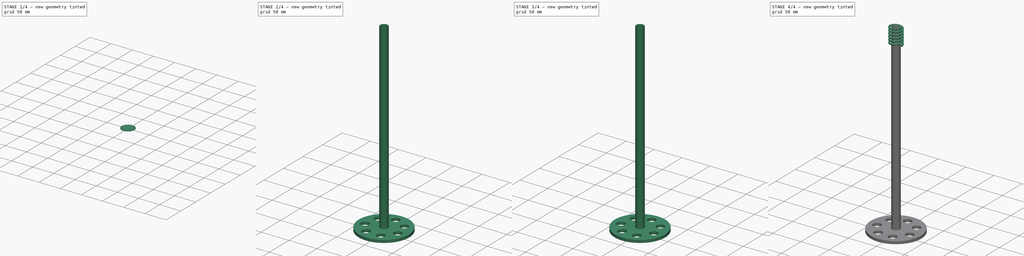
[diagram: build sequence overview — one tinted view per stage of 4, left to right]
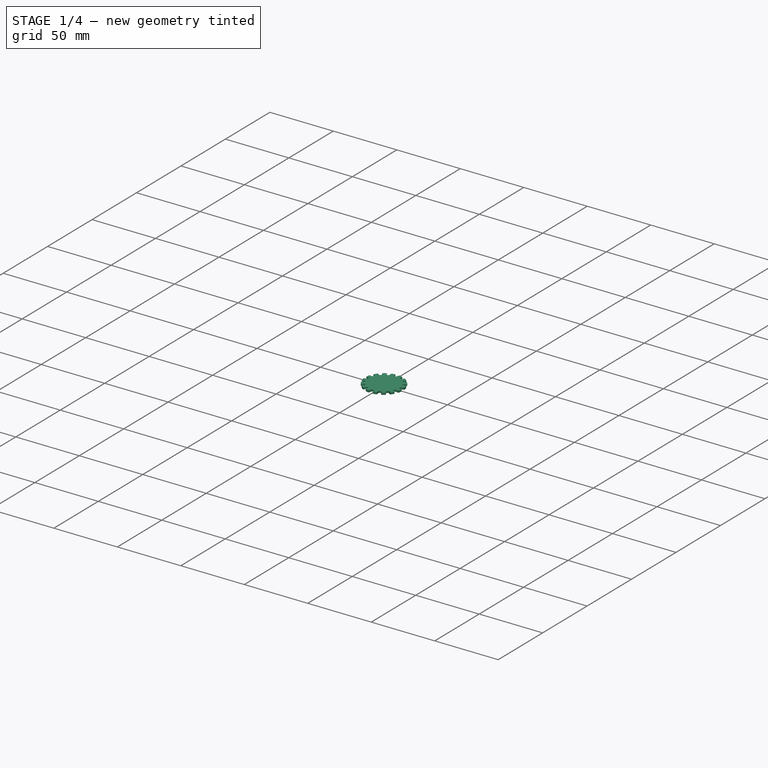
[diagram: stage 1 of 4 — iso view after this stage's code; geometry added in this stage tinted green]
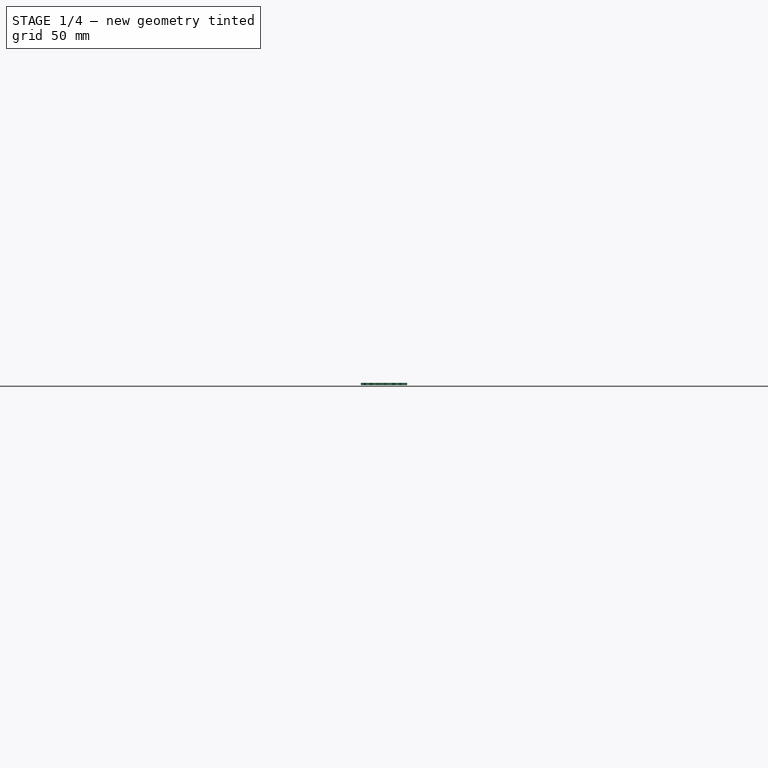
[diagram: stage 1 of 4 — front view after this stage's code; geometry added in this stage tinted green]
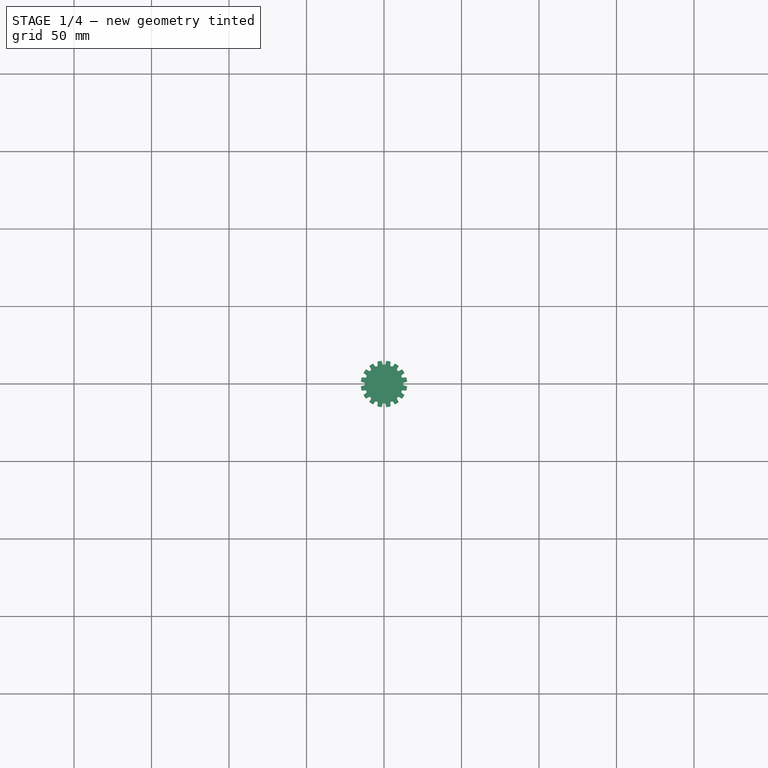
[diagram: stage 1 of 4 — top view after this stage's code; geometry added in this stage tinted green]
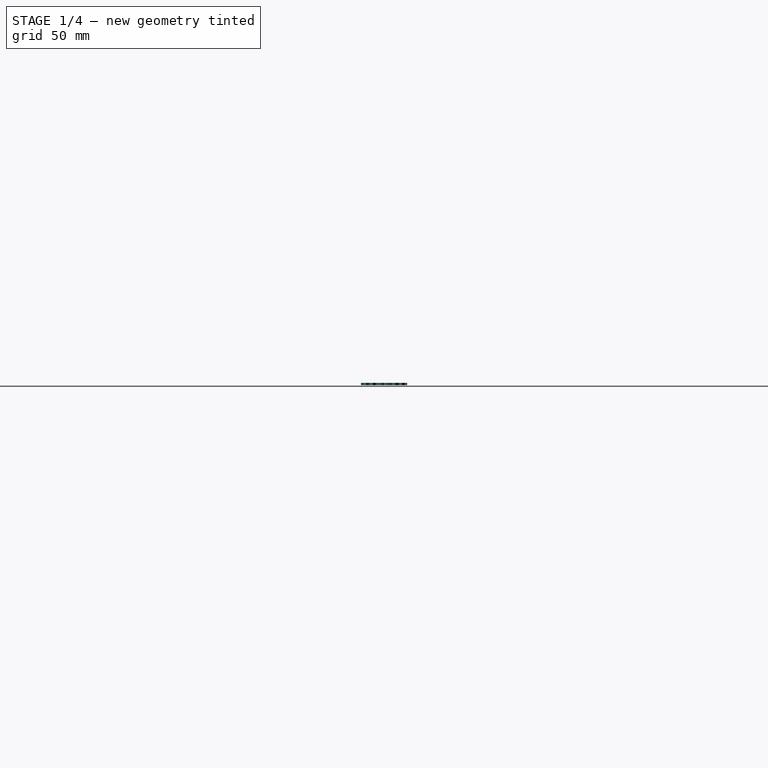
[diagram: stage 1 of 4 — right view after this stage's code; geometry added in this stage tinted green]
FCSTD DOCUMENT  (FreeCAD 0.17R13528 (Git))
Label: gprofil
License: All rights reserved
LicenseURL: http://en.wikipedia.org/wiki/All_rights_reserved
objects: Sketcher::SketchObject×12, PartDesign::Body×11, PartDesign::Pad×10, Part::Helix×1, Part::Sweep×1, PartDesign::FeatureBase×1, App::DocumentObjectGroup×1, PartDesign::Pocket×1, PartDesign::PolarPattern×1
note: 49 computed .brp shape members not serialized (recipe doc carries the construction recipe); baked Part::Feature solids carry a one-line shape summary decoded from their .brp

FEATURE [PartDesign::Body] Body010  label="äußerer kopf"
  Group = -> [Sketch011,Pad009]
  Origin = -> Origin010
  Placement = pos=(0,0,332) rot=(0,0,1;0rad)
  Tip = -> Pad009
FEATURE [Sketcher::SketchObject] Sketch012  label="Zahnrad_am_kopf001"
  MapMode = 5
  Support = -> [XY_Plane011]
  sketch-geometry (1):
    g0: Circle CenterX=0 CenterY=0 CenterZ=0 NormalX=0 NormalY=0 NormalZ=1 AngleXU=0 Radius=15
  constraints (2):
    c: Coincident(g0,g-1)
    c: Radius(g0) = 15
FEATURE [PartDesign::Pad] Pad010
  Length = 1.5
  Length2 = 100
  Profile = -> Sketch012
  Type = 0
FEATURE [Sketcher::SketchObject] Sketch013  label="Zahnrad_am_kopf002"
  MapMode = 5
  sketch-geometry (4):
    g0: LineSegment StartX=-2 StartY=17 StartZ=0 EndX=2 EndY=17 EndZ=0
    g1: LineSegment StartX=2 StartY=17 StartZ=0 EndX=0.968311 EndY=13 EndZ=0
    g2: ArcOfCircle CenterX=0 CenterY=13.2497 CenterZ=0 NormalX=0 NormalY=0 NormalZ=1 AngleXU=0 Radius=1 StartAngle=3.39401 EndAngle=6.03076
    g3: LineSegment StartX=-0.968311 StartY=13 StartZ=0 EndX=-2 EndY=17 EndZ=0
  constraints (11):
    c: Coincident(g0,g1)
    c: Tangent(g1,g2) = 1.5708
    c: Coincident(g2,g3)
    c: Coincident(g3,g0)
    c: DistanceX(g0,g0) = 4
    c: Radius(g2) = 1
    c: DistanceX(g-1,g2) = 0
    c: Symmetric(g0,g0,g-2)
    c: DistanceY(g-1,g2) = 13
    c: DistanceY(g-1,g0) = 17
    c: DistanceY(g-1,g1) = 13
FEATURE [PartDesign::Pocket] Pocket
  BaseFeature = -> Pad010
  Length = 5
  Length2 = 100
  Midplane = true
  Profile = -> Sketch013
  Type = 1
FEATURE [PartDesign::PolarPattern] PolarPattern
  Angle = 360
  Axis = -> Sketch013 [N_Axis]
  BaseFeature = -> Pocket
  Occurrences = 16
  Originals = -> [Pocket]
FEATURE [PartDesign::Body] Body011  label="Zahnrad_am_kopf"
  Group = -> [Sketch012,Pad010,Sketch013,Pocket,PolarPattern]
  Origin = -> Origin011
  Placement = pos=(0,0,338) rot=(0,0,1;0rad)
  Tip = -> PolarPattern
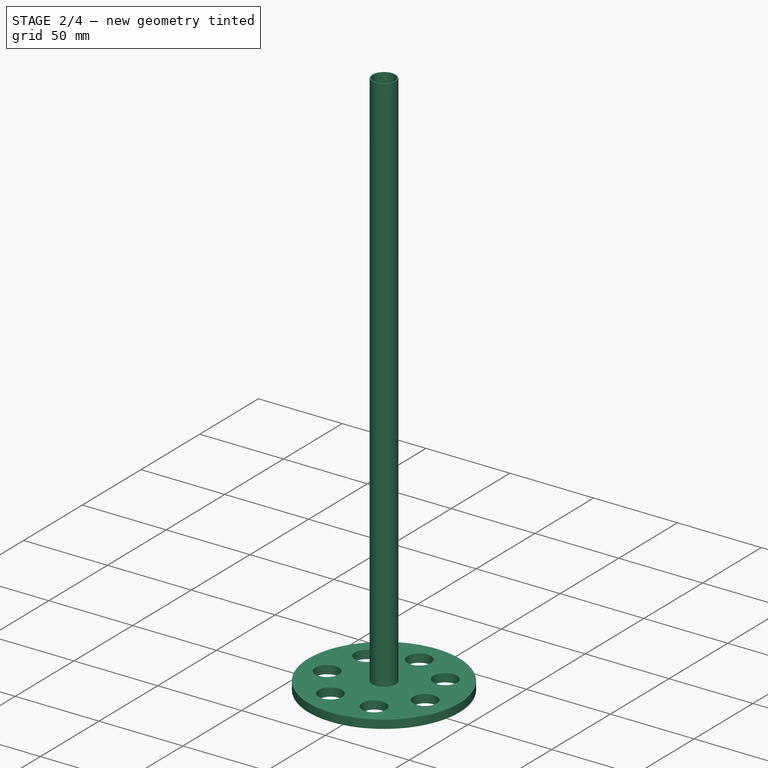
[diagram: stage 2 of 4 — iso view after this stage's code; geometry added in this stage tinted green]
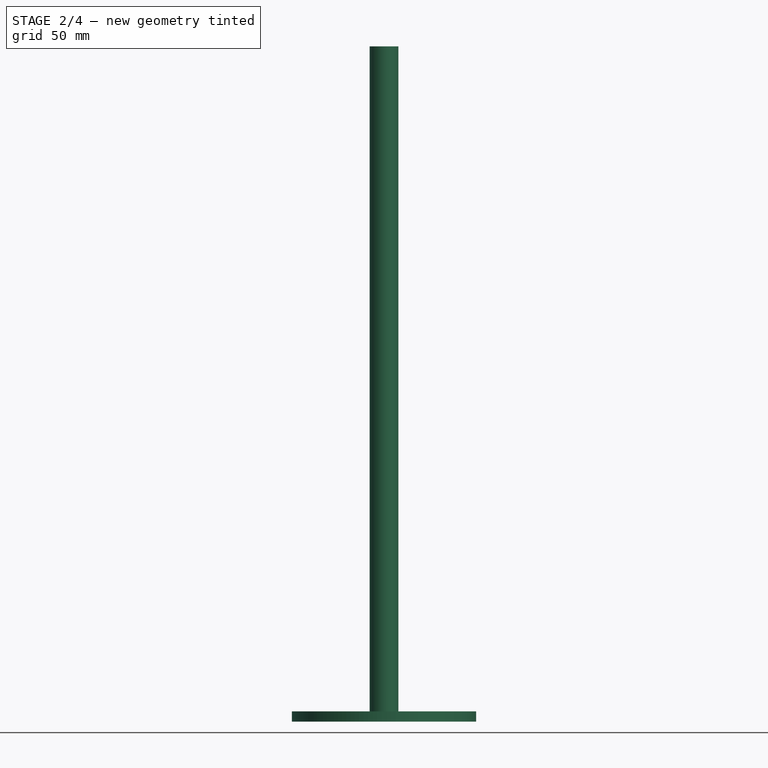
[diagram: stage 2 of 4 — front view after this stage's code; geometry added in this stage tinted green]
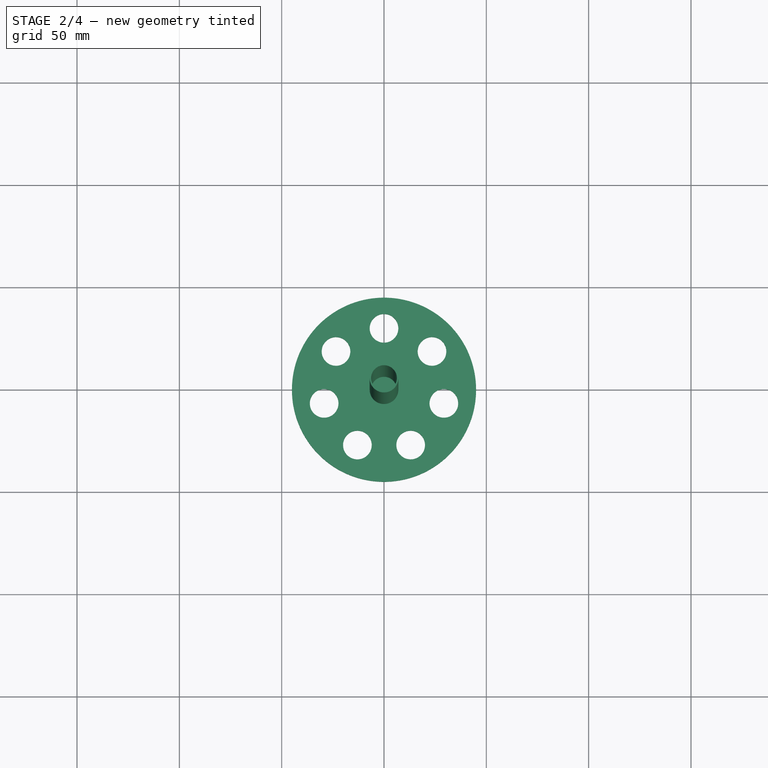
[diagram: stage 2 of 4 — top view after this stage's code; geometry added in this stage tinted green]
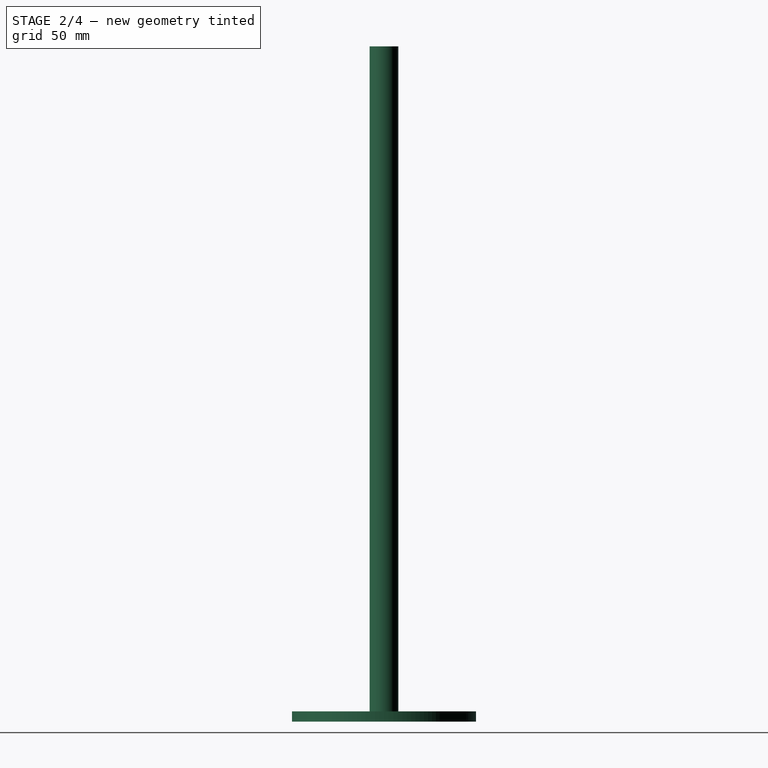
[diagram: stage 2 of 4 — right view after this stage's code; geometry added in this stage tinted green]
FEATURE [PartDesign::Body] Body007  label="Stange004"
  Group = -> [Sketch008,Pad006]
  Origin = -> Origin007
  Placement = pos=(-13,-27,6) rot=(0,0,1;0rad)
  Tip = -> Pad006
FEATURE [Sketcher::SketchObject] Sketch009
  MapMode = 5
  Support = -> [XY_Plane008]
  sketch-geometry (2):
    g0: Circle CenterX=0 CenterY=0 CenterZ=0 NormalX=0 NormalY=0 NormalZ=1 AngleXU=0 Radius=7
    g1: Circle CenterX=0 CenterY=0 CenterZ=0 NormalX=0 NormalY=0 NormalZ=1 AngleXU=0 Radius=6.3
  constraints (4):
    c: Coincident(g0,g-1)
    c: Radius(g0) = 7
    c: Coincident(g1,g-1)
    c: Radius(g1) = 6.3
FEATURE [PartDesign::Pad] Pad007
  Length = 330
  Length2 = 100
  Profile = -> Sketch009
  Type = 0
FEATURE [PartDesign::Body] Body008  label="Stange005"
  Group = -> [Sketch009,Pad007]
  Origin = -> Origin008
  Placement = pos=(-29,-6,6) rot=(0,0,1;0rad)
  Tip = -> Pad007
FEATURE [Sketcher::SketchObject] Sketch010
  MapMode = 5
  Support = -> [XY_Plane009]
  sketch-geometry (2):
    g0: Circle CenterX=0 CenterY=0 CenterZ=0 NormalX=0 NormalY=0 NormalZ=1 AngleXU=0 Radius=7
    g1: Circle CenterX=0 CenterY=0 CenterZ=0 NormalX=0 NormalY=0 NormalZ=1 AngleXU=0 Radius=6.3
  constraints (4):
    c: Coincident(g0,g-1)
    c: Radius(g0) = 7
    c: Coincident(g1,g-1)
    c: Radius(g1) = 6.3
FEATURE [PartDesign::Pad] Pad008
  Length = 330
  Length2 = 100
  Profile = -> Sketch010
  Type = 0
FEATURE [PartDesign::Body] Body009  label="Stange006"
  Group = -> [Sketch010,Pad008]
  Origin = -> Origin009
  Placement = pos=(-23,19,6) rot=(0,0,1;0rad)
  Tip = -> Pad008
FEATURE [App::DocumentObjectGroup] Gruppe  label="stangen"
  Group = -> [Body001,Body004,Body005,Body006,Body007,Body008,Body009]
FEATURE [Sketcher::SketchObject] Sketch011
  MapMode = 5
  Support = -> [XY_Plane010]
  sketch-geometry (8):
    g0: Circle CenterX=0 CenterY=0 CenterZ=0 NormalX=0 NormalY=0 NormalZ=1 AngleXU=0 Radius=45
    g1: Circle CenterX=13.0256 CenterY=-27.0247 CenterZ=0 NormalX=0 NormalY=0 NormalZ=1 AngleXU=0 Radius=7
    g2: Circle CenterX=-13.0044 CenterY=-27.0349 CenterZ=0 NormalX=0 NormalY=0 NormalZ=1 AngleXU=0 Radius=7
    g3: Circle CenterX=-29.2493 CenterY=-6.66908 CenterZ=0 NormalX=0 NormalY=0 NormalZ=1 AngleXU=0 Radius=7
    g4: Circle CenterX=-23.4529 CenterY=18.7073 CenterZ=0 NormalX=0 NormalY=0 NormalZ=1 AngleXU=0 Radius=7
    g5: Circle CenterX=0 CenterY=30 CenterZ=0 NormalX=0 NormalY=0 NormalZ=1 AngleXU=0 Radius=7
    g6: Circle CenterX=23.4529 CenterY=18.7073 CenterZ=0 NormalX=0 NormalY=0 NormalZ=1 AngleXU=0 Radius=7
    g7: Circle CenterX=29.2493 CenterY=-6.66908 CenterZ=0 NormalX=0 NormalY=0 NormalZ=1 AngleXU=0 Radius=7
  constraints (23):
    c: Coincident(g0,g-1)
    c: Radius(g0) = 45
    c: Radius(g1) = 7
    c: Radius(g2) = 7
    c: Radius(g3) = 7
    c: Radius(g4) = 7
    c: Radius(g5) = 7
    c: Radius(g7) = 7
    c: Radius(g6) = 7
    c: Distance(g-1,g3) = 30
    c: Distance(g-1,g2) = 30
    c: Distance(g-1,g1) = 30
    c: Distance(g-1,g7) = 30
    c: Distance(g-1,g6) = 30
    c: Distance(g-1,g5) = 30
    c: Distance(g-1,g4) = 30
    c: Distance(g3,g4) = 26.03
    c: Distance(g4,g5) = 26.03
    c: Distance(g5,g6) = 26.03
    c: Distance(g6,g7) = 26.03
    c: Distance(g1,g7) = 26.03
    c: Distance(g2,g1) = 26.03
    c: DistanceX(g5,g-1) = 0
FEATURE [PartDesign::Pad] Pad009
  Length = 5
  Length2 = 100
  Profile = -> Sketch011
  Type = 0
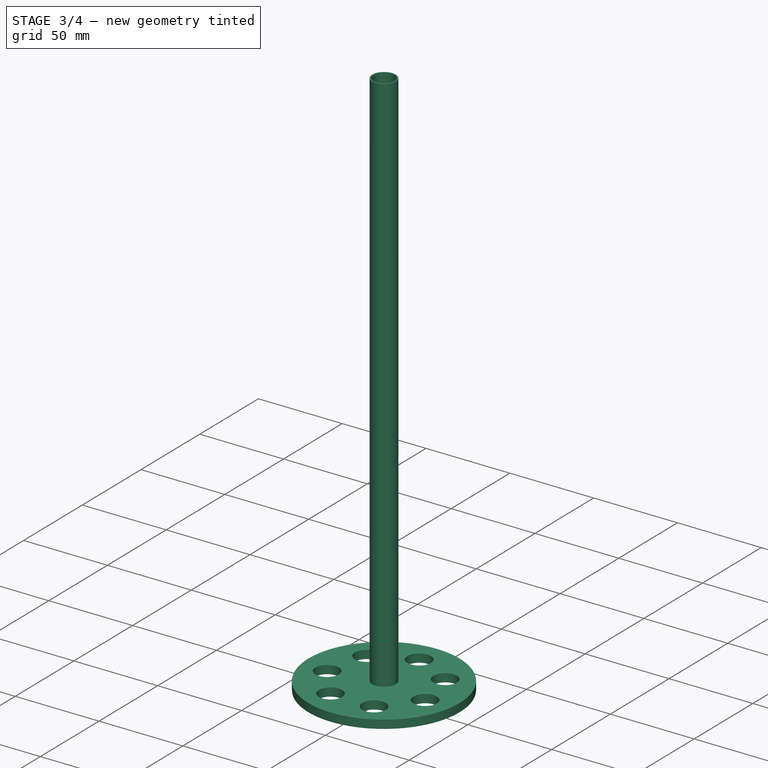
[diagram: stage 3 of 4 — iso view after this stage's code; geometry added in this stage tinted green]
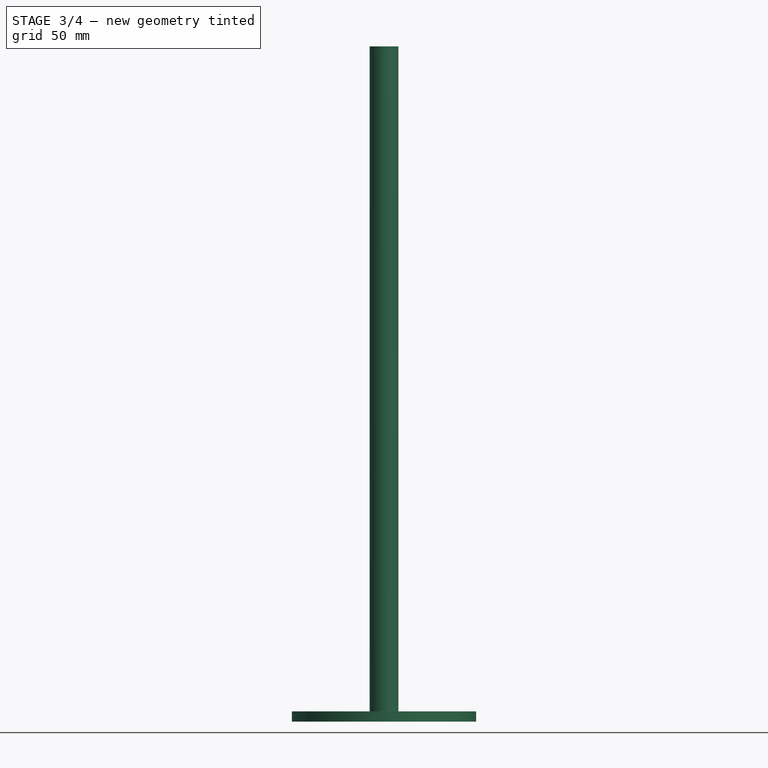
[diagram: stage 3 of 4 — front view after this stage's code; geometry added in this stage tinted green]
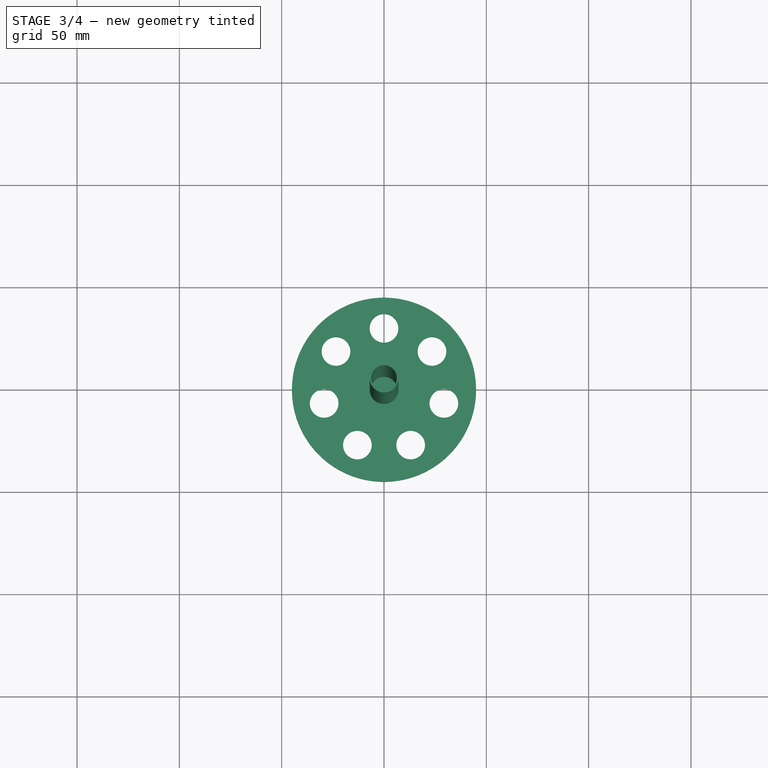
[diagram: stage 3 of 4 — top view after this stage's code; geometry added in this stage tinted green]
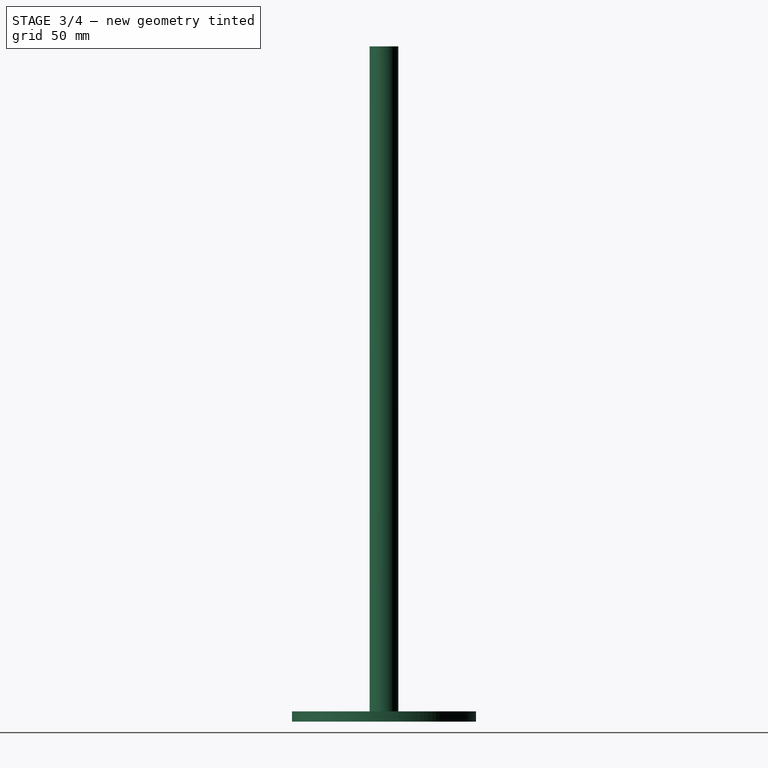
[diagram: stage 3 of 4 — right view after this stage's code; geometry added in this stage tinted green]
FEATURE [PartDesign::FeatureBase] BaseFeature
  BaseFeature = -> Helix004
FEATURE [PartDesign::Body] Body003  label="Feder"
  BaseFeature = -> Helix004
  Group = -> [BaseFeature,Sketch004]
  Origin = -> Origin003
  Tip = -> BaseFeature
FEATURE [Sketcher::SketchObject] Sketch005
  MapMode = 5
  Support = -> [XY_Plane004]
  sketch-geometry (2):
    g0: Circle CenterX=0 CenterY=0 CenterZ=0 NormalX=0 NormalY=0 NormalZ=1 AngleXU=0 Radius=7
    g1: Circle CenterX=0 CenterY=0 CenterZ=0 NormalX=0 NormalY=0 NormalZ=1 AngleXU=0 Radius=6.3
  constraints (4):
    c: Coincident(g0,g-1)
    c: Radius(g0) = 7
    c: Coincident(g1,g-1)
    c: Radius(g1) = 6.3
FEATURE [PartDesign::Pad] Pad003
  Length = 330
  Length2 = 100
  Profile = -> Sketch005
  Type = 0
FEATURE [PartDesign::Body] Body004  label="Stange001"
  Group = -> [Sketch005,Pad003]
  Origin = -> Origin004
  Placement = pos=(23,18,3) rot=(0,0,1;0rad)
  Tip = -> Pad003
FEATURE [Sketcher::SketchObject] Sketch006
  MapMode = 5
  Support = -> [XY_Plane005]
  sketch-geometry (2):
    g0: Circle CenterX=0 CenterY=0 CenterZ=0 NormalX=0 NormalY=0 NormalZ=1 AngleXU=0 Radius=7
    g1: Circle CenterX=0 CenterY=0 CenterZ=0 NormalX=0 NormalY=0 NormalZ=1 AngleXU=0 Radius=6.3
  constraints (4):
    c: Coincident(g0,g-1)
    c: Radius(g0) = 7
    c: Coincident(g1,g-1)
    c: Radius(g1) = 6.3
FEATURE [PartDesign::Pad] Pad004
  Length = 330
  Length2 = 100
  Profile = -> Sketch006
  Type = 0
FEATURE [PartDesign::Body] Body005  label="Stange002"
  Group = -> [Sketch006,Pad004]
  Origin = -> Origin005
  Placement = pos=(29,-7,3) rot=(0,0,1;0rad)
  Tip = -> Pad004
FEATURE [Sketcher::SketchObject] Sketch007
  MapMode = 5
  Support = -> [XY_Plane006]
  sketch-geometry (2):
    g0: Circle CenterX=0 CenterY=0 CenterZ=0 NormalX=0 NormalY=0 NormalZ=1 AngleXU=0 Radius=7
    g1: Circle CenterX=0 CenterY=0 CenterZ=0 NormalX=0 NormalY=0 NormalZ=1 AngleXU=0 Radius=6.3
  constraints (4):
    c: Coincident(g0,g-1)
    c: Radius(g0) = 7
    c: Coincident(g1,g-1)
    c: Radius(g1) = 6.3
FEATURE [PartDesign::Pad] Pad005
  Length = 330
  Length2 = 100
  Profile = -> Sketch007
  Type = 0
FEATURE [PartDesign::Body] Body006  label="Stange003"
  Group = -> [Sketch007,Pad005]
  Origin = -> Origin006
  Placement = pos=(13,-27,6) rot=(0,0,1;0rad)
  Tip = -> Pad005
FEATURE [Sketcher::SketchObject] Sketch008
  MapMode = 5
  Support = -> [XY_Plane007]
  sketch-geometry (2):
    g0: Circle CenterX=0 CenterY=0 CenterZ=0 NormalX=0 NormalY=0 NormalZ=1 AngleXU=0 Radius=7
    g1: Circle CenterX=0 CenterY=0 CenterZ=0 NormalX=0 NormalY=0 NormalZ=1 AngleXU=0 Radius=6.3
  constraints (4):
    c: Coincident(g0,g-1)
    c: Radius(g0) = 7
    c: Coincident(g1,g-1)
    c: Radius(g1) = 6.3
FEATURE [PartDesign::Pad] Pad006
  Length = 330
  Length2 = 100
  Profile = -> Sketch008
  Type = 0
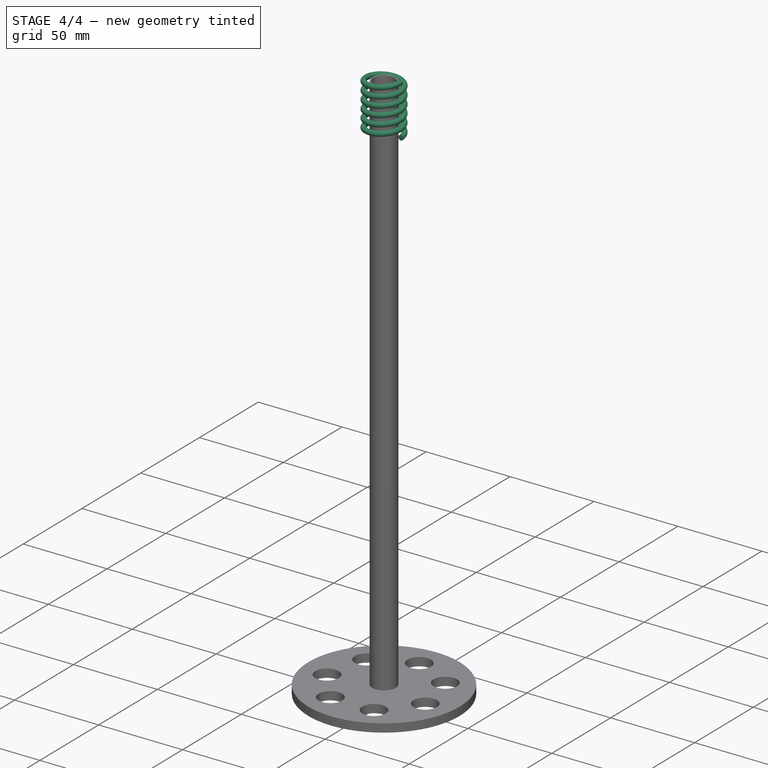
[diagram: stage 4 of 4 — iso view after this stage's code; geometry added in this stage tinted green]
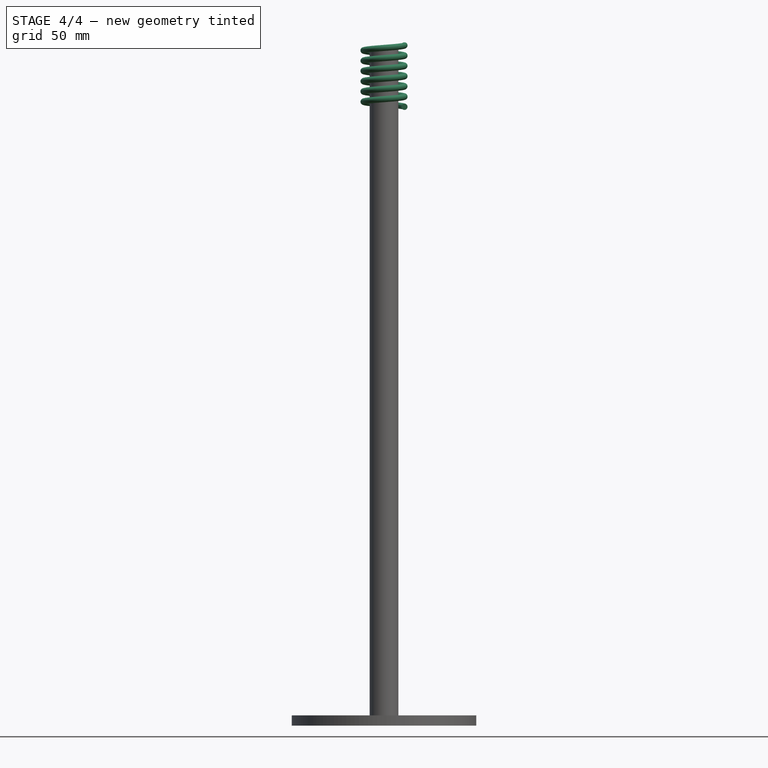
[diagram: stage 4 of 4 — front view after this stage's code; geometry added in this stage tinted green]
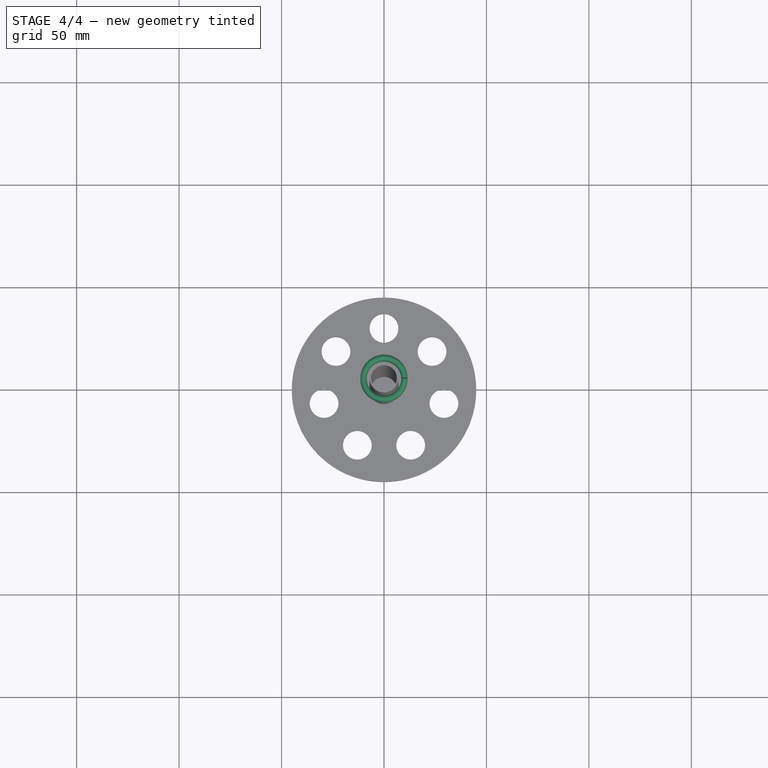
[diagram: stage 4 of 4 — top view after this stage's code; geometry added in this stage tinted green]
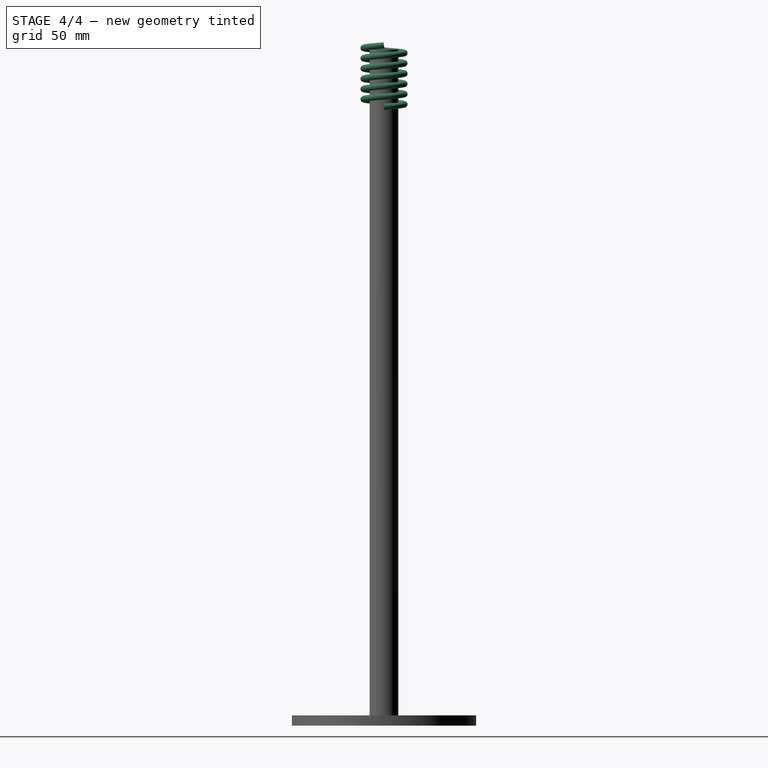
[diagram: stage 4 of 4 — right view after this stage's code; geometry added in this stage tinted green]
FEATURE [Sketcher::SketchObject] Sketch
  MapMode = 5
  Support = -> [XY_Plane]
  sketch-geometry (8):
    g0: Circle CenterX=0 CenterY=0 CenterZ=0 NormalX=0 NormalY=0 NormalZ=1 AngleXU=0 Radius=45
    g1: Circle CenterX=13.0256 CenterY=-27.0247 CenterZ=0 NormalX=0 NormalY=0 NormalZ=1 AngleXU=0 Radius=7
    g2: Circle CenterX=-13.0044 CenterY=-27.0349 CenterZ=0 NormalX=0 NormalY=0 NormalZ=1 AngleXU=0 Radius=7
    g3: Circle CenterX=-29.2493 CenterY=-6.66908 CenterZ=0 NormalX=0 NormalY=0 NormalZ=1 AngleXU=0 Radius=7
    g4: Circle CenterX=-23.4529 CenterY=18.7073 CenterZ=0 NormalX=0 NormalY=0 NormalZ=1 AngleXU=0 Radius=7
    g5: Circle CenterX=0 CenterY=30 CenterZ=0 NormalX=0 NormalY=0 NormalZ=1 AngleXU=0 Radius=7
    g6: Circle CenterX=23.4529 CenterY=18.7073 CenterZ=0 NormalX=0 NormalY=0 NormalZ=1 AngleXU=0 Radius=7
    g7: Circle CenterX=29.2493 CenterY=-6.66908 CenterZ=0 NormalX=0 NormalY=0 NormalZ=1 AngleXU=0 Radius=7
  constraints (23):
    c: Coincident(g0,g-1)
    c: Radius(g0) = 45
    c: Radius(g1) = 7
    c: Radius(g2) = 7
    c: Radius(g3) = 7
    c: Radius(g4) = 7
    c: Radius(g5) = 7
    c: Radius(g7) = 7
    c: Radius(g6) = 7
    c: Distance(g-1,g3) = 30
    c: Distance(g-1,g2) = 30
    c: Distance(g-1,g1) = 30
    c: Distance(g-1,g7) = 30
    c: Distance(g-1,g6) = 30
    c: Distance(g-1,g5) = 30
    c: Distance(g-1,g4) = 30
    c: Distance(g3,g4) = 26.03
    c: Distance(g4,g5) = 26.03
    c: Distance(g5,g6) = 26.03
    c: Distance(g6,g7) = 26.03
    c: Distance(g1,g7) = 26.03
    c: Distance(g2,g1) = 26.03
    c: DistanceX(g5,g-1) = 0
FEATURE [PartDesign::Pad] Pad
  Length = 5
  Length2 = 100
  Profile = -> Sketch
  Type = 0
FEATURE [PartDesign::Body] Body  label="innerer kopf"
  Group = -> [Sketch,Pad]
  Origin = -> Origin
  Placement = pos=(0,0,4) rot=(0,0,1;0rad)
  Tip = -> Pad
FEATURE [Sketcher::SketchObject] Sketch001
  MapMode = 5
  Support = -> [XY_Plane001]
  sketch-geometry (2):
    g0: Circle CenterX=0 CenterY=0 CenterZ=0 NormalX=0 NormalY=0 NormalZ=1 AngleXU=0 Radius=7
    g1: Circle CenterX=0 CenterY=0 CenterZ=0 NormalX=0 NormalY=0 NormalZ=1 AngleXU=0 Radius=6.3
  constraints (4):
    c: Coincident(g0,g-1)
    c: Radius(g0) = 7
    c: Coincident(g1,g-1)
    c: Radius(g1) = 6.3
FEATURE [PartDesign::Pad] Pad001
  Length = 330
  Length2 = 100
  Profile = -> Sketch001
  Type = 0
FEATURE [PartDesign::Body] Body001  label="Stange"
  Group = -> [Sketch001,Pad001]
  Origin = -> Origin001
  Placement = pos=(0,30,6) rot=(0,0,1;0rad)
  Tip = -> Pad001
FEATURE [Part::Helix] Helix004
  Angle = 0
  AttacherType = Attacher::AttachEngine3D
  Height = 30
  LocalCoord = 0
  Pitch = 5
  Radius = 10
  Style = 1
FEATURE [Sketcher::SketchObject] Sketch004
  MapMode = 5
  Placement = pos=(0,0,0) rot=(1,0,0;1.5708rad)
  Support = -> [XZ_Plane003]
  sketch-geometry (1):
    g0: Circle CenterX=10 CenterY=0 CenterZ=0 NormalX=0 NormalY=0 NormalZ=1 AngleXU=0 Radius=1.5
  constraints (3):
    c: Radius(g0) = 1.5
    c: DistanceX(g-1,g0) = 10
    c: DistanceY(g-1,g0) = 0
FEATURE [Part::Sweep] Sweep  label="Feder001"
  Frenet = false
  Placement = pos=(0,0,302) rot=(0,0,1;0rad)
  Sections = -> [Sketch004]
  Solid = true
  Spine = -> Helix004 [Edge1,Edge2,Edge3,Edge4,Edge5,Edge6]
  Transition = 1
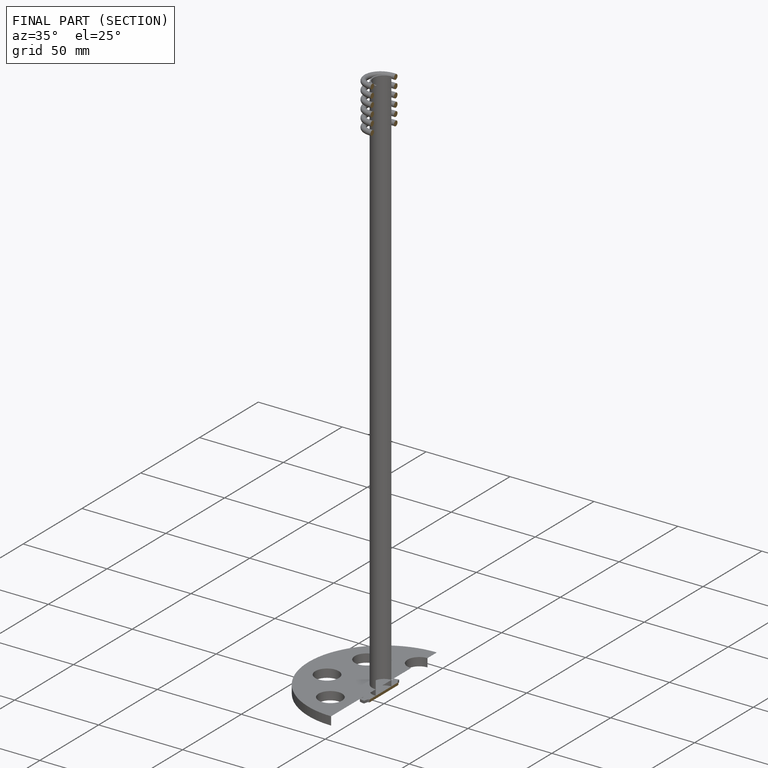
[diagram: finished part — half-section view (interior)]
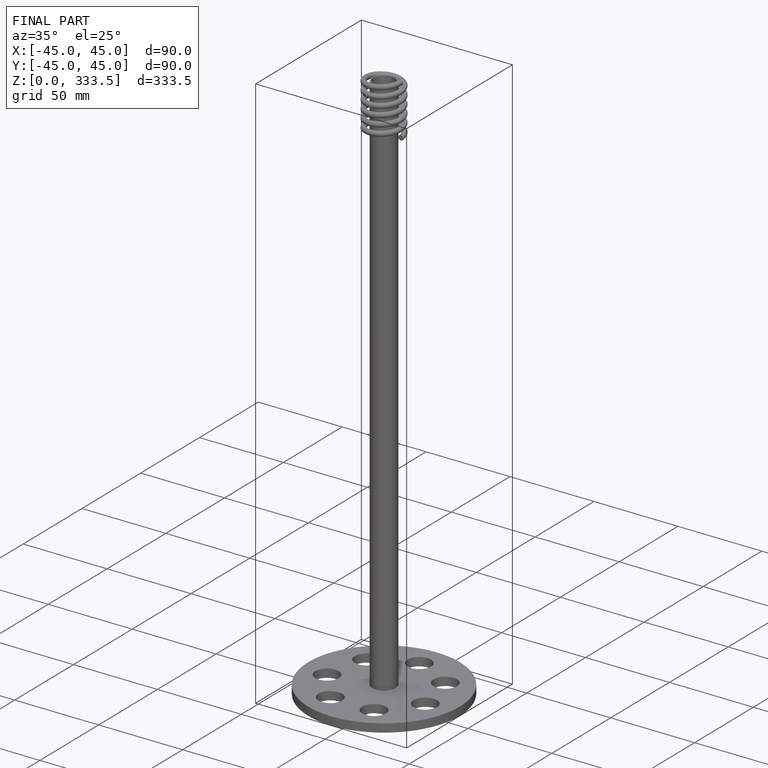
[diagram: finished part — iso view with bounding-box wireframe]
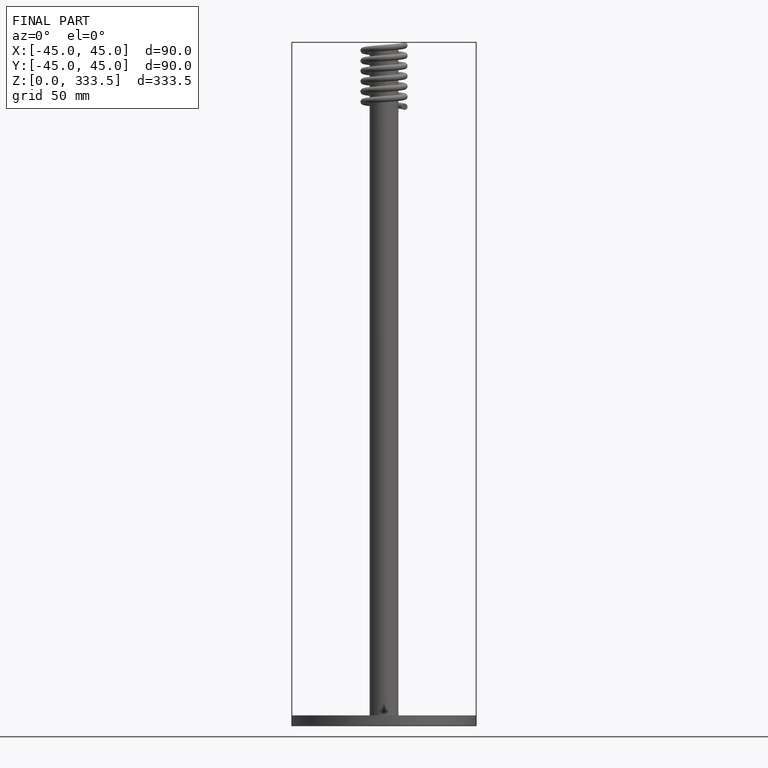
[diagram: finished part — front view with bounding-box wireframe]
